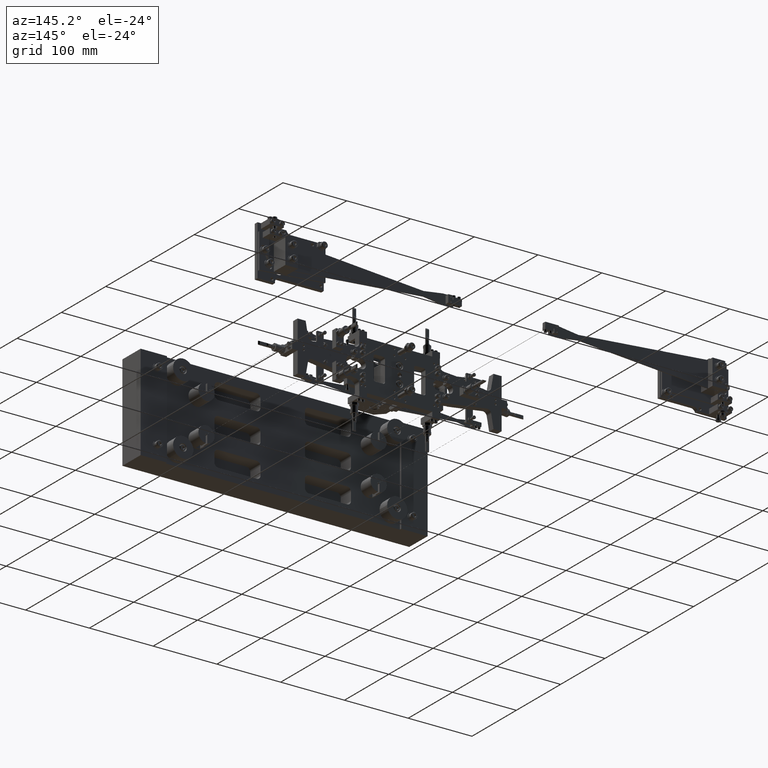
[diagram: clean part render]
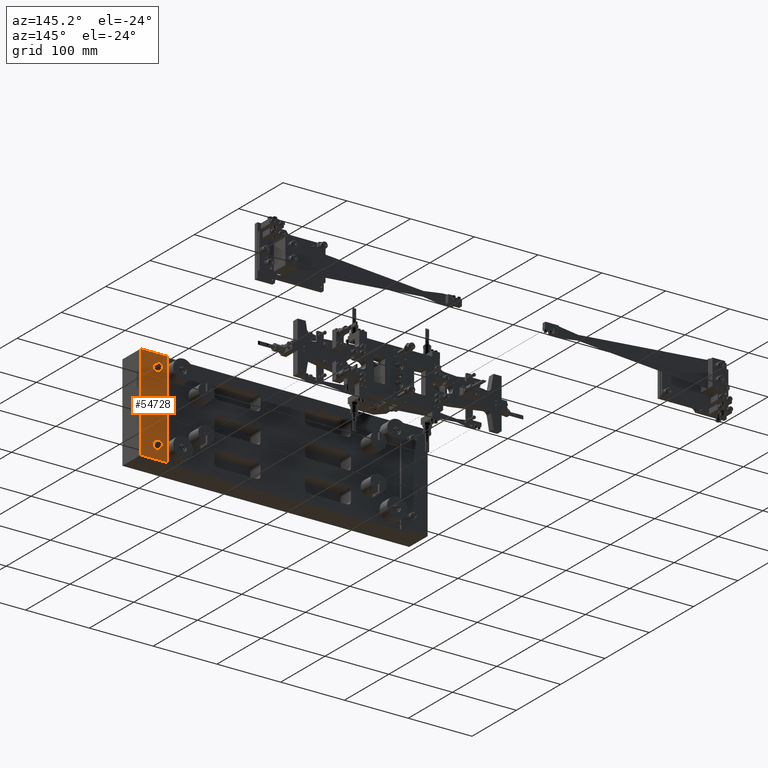
[diagram: same view with one face highlighted and labeled with its STEP entity id]
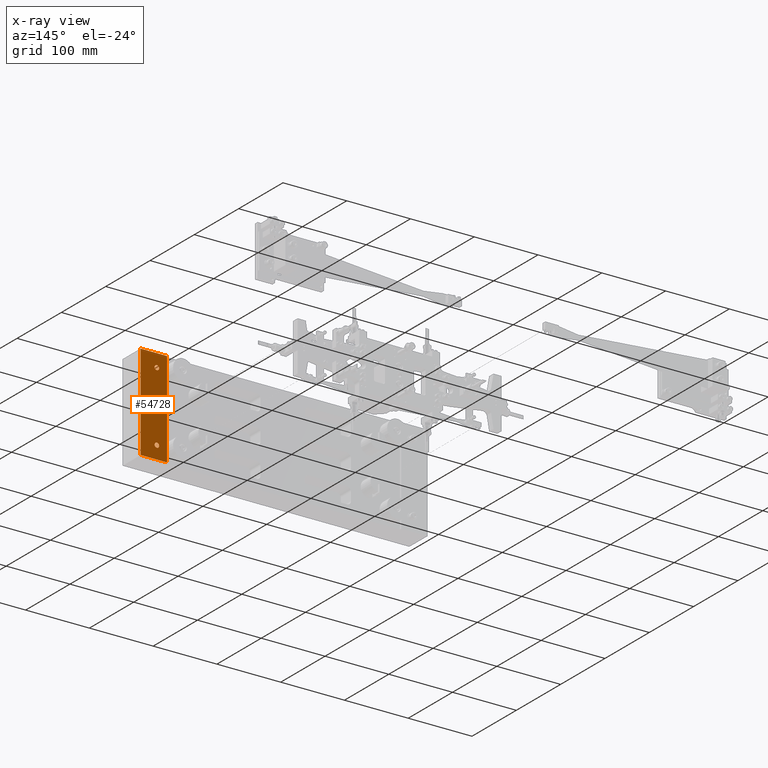
[diagram: x-ray of the same camera — body ghosted, the highlighted face saturated]
A machine part, auxiliary view. The second image highlights one B-rep face of the part: STEP entity #54728.
The next image is the same camera in x-ray: the body ghosted, the highlighted face saturated — about 0% of this face is hidden behind the body in this view.
In plain terms, the highlighted planar face has unit normal (-0, -1, 0).
Its self-contained STEP definition (entity closure, byte-faithful):
#204 = EDGE_LOOP ( 'NONE', ( #41944, #42886 ) ) ;
#3410 = CARTESIAN_POINT ( 'NONE',  ( 5.105000000000006600, 0.1300000000000021700, -1.140000000000000800 ) ) ;
#4037 = CARTESIAN_POINT ( 'NONE',  ( 5.905511811023629300, 0.1299999999999988900, 2.185478394931410600E-015 ) ) ;
#4884 = VERTEX_POINT ( 'NONE', #3410 ) ;
#6043 = EDGE_LOOP ( 'NONE', ( #24835, #17588 ) ) ;
#6798 = EDGE_CURVE ( 'NONE', #13612, #45603, #39007, .T. ) ;
#6997 = DIRECTION ( 'NONE',  ( 0.0000000000000000000, 1.000000000000000000, -5.551115123125782700E-017 ) ) ;
#7919 = CARTESIAN_POINT ( 'NONE',  ( 5.105000000000006600, 0.1300000000000021700, -1.000000000000000200 ) ) ;
#8697 = VERTEX_POINT ( 'NONE', #4037 ) ;
#8876 = CARTESIAN_POINT ( 'NONE',  ( 0.0000000000000000000, 0.1300000000000032500, -1.092739197465705300E-015 ) ) ;
#9729 = AXIS2_PLACEMENT_3D ( 'NONE', #16832, #52879, #21995 ) ;
#11081 = EDGE_CURVE ( 'NONE', #30431, #44125, #16044, .T. ) ;
#13144 = DIRECTION ( 'NONE',  ( 0.0000000000000000000, 0.0000000000000000000, 1.000000000000000000 ) ) ;
#13612 = VERTEX_POINT ( 'NONE', #61481 ) ;
#15513 = EDGE_LOOP ( 'NONE', ( #32011, #23717, #43969, #32496 ) ) ;
#15706 = CARTESIAN_POINT ( 'NONE',  ( 5.905511811023628400, 0.1300000000000010600, -1.625000000000002400 ) ) ;
#16044 = LINE ( 'NONE', #60767, #26479 ) ;
#16758 = CARTESIAN_POINT ( 'NONE',  ( 0.0000000000000000000, 0.1300000000000032500, -1.092739197465705300E-015 ) ) ;
#16832 = CARTESIAN_POINT ( 'NONE',  ( 0.8009999999999994900, 0.1300000000000032500, -1.000000000000001300 ) ) ;
#17588 = ORIENTED_EDGE ( 'NONE', *, *, #43611, .F. ) ;
#19180 = EDGE_CURVE ( 'NONE', #44125, #28712, #51097, .T. ) ;
#19592 = DIRECTION ( 'NONE',  ( -1.000000000000000000, -5.551115123125773500E-017, -5.551115123125773500E-017 ) ) ;
#20101 = AXIS2_PLACEMENT_3D ( 'NONE', #24758, #30002, #65946 ) ;
#20900 = CARTESIAN_POINT ( 'NONE',  ( 5.105000000000006600, 0.1300000000000021700, -1.000000000000000200 ) ) ;
#21929 = DIRECTION ( 'NONE',  ( -5.551115123125773500E-017, 0.0000000000000000000, 1.000000000000000000 ) ) ;
#21995 = DIRECTION ( 'NONE',  ( 0.0000000000000000000, 0.0000000000000000000, 1.000000000000000000 ) ) ;
#23057 = AXIS2_PLACEMENT_3D ( 'NONE', #20900, #56906, #26089 ) ;
#23717 = ORIENTED_EDGE ( 'NONE', *, *, #54660, .T. ) ;
#24323 = DIRECTION ( 'NONE',  ( 1.000000000000000000, 5.551115123125773500E-017, 5.551115123125773500E-017 ) ) ;
#24758 = CARTESIAN_POINT ( 'NONE',  ( 0.0000000000000000000, 0.1300000000000032500, -1.092739197465705300E-015 ) ) ;
#24835 = ORIENTED_EDGE ( 'NONE', *, *, #6798, .F. ) ;
#25804 = FACE_OUTER_BOUND ( 'NONE', #15513, .T. ) ;
#26089 = DIRECTION ( 'NONE',  ( 0.0000000000000000000, 0.0000000000000000000, 1.000000000000000000 ) ) ;
#26479 = VECTOR ( 'NONE', #19592, 39.37007874015748100 ) ;
#26702 = CIRCLE ( 'NONE', #47827, 0.1400000000000006800 ) ;
#28151 = AXIS2_PLACEMENT_3D ( 'NONE', #37850, #6997, #43039 ) ;
#28712 = VERTEX_POINT ( 'NONE', #8876 ) ;
#29166 = CARTESIAN_POINT ( 'NONE',  ( 5.105000000000006600, 0.1300000000000021700, -0.8599999999999996500 ) ) ;
#30002 = DIRECTION ( 'NONE',  ( 3.081487911019572200E-033, -1.000000000000000000, 1.710569414458999500E-049 ) ) ;
#30431 = VERTEX_POINT ( 'NONE', #15706 ) ;
#32011 = ORIENTED_EDGE ( 'NONE', *, *, #19180, .T. ) ;
#32367 = DIRECTION ( 'NONE',  ( 5.551115123125773500E-017, 0.0000000000000000000, -1.000000000000000000 ) ) ;
#32496 = ORIENTED_EDGE ( 'NONE', *, *, #11081, .T. ) ;
#37850 = CARTESIAN_POINT ( 'NONE',  ( 0.8009999999999994900, 0.1300000000000032500, -1.000000000000001300 ) ) ;
#39007 = CIRCLE ( 'NONE', #28151, 0.1400000000000005700 ) ;
#39009 = EDGE_CURVE ( 'NONE', #8697, #30431, #60012, .T. ) ;
#41121 = FACE_BOUND ( 'NONE', #204, .T. ) ;
#41944 = ORIENTED_EDGE ( 'NONE', *, *, #53228, .F. ) ;
#42028 = CARTESIAN_POINT ( 'NONE',  ( 0.8009999999999994900, 0.1300000000000032500, -0.8600000000000011000 ) ) ;
#42886 = ORIENTED_EDGE ( 'NONE', *, *, #46581, .F. ) ;
#43039 = DIRECTION ( 'NONE',  ( 0.0000000000000000000, 0.0000000000000000000, 1.000000000000000000 ) ) ;
#43091 = CIRCLE ( 'NONE', #9729, 0.1400000000000005700 ) ;
#43611 = EDGE_CURVE ( 'NONE', #45603, #13612, #43091, .T. ) ;
#43966 = DIRECTION ( 'NONE',  ( 0.0000000000000000000, 1.000000000000000000, -5.551115123125782700E-017 ) ) ;
#43969 = ORIENTED_EDGE ( 'NONE', *, *, #39009, .T. ) ;
#44125 = VERTEX_POINT ( 'NONE', #56381 ) ;
#45603 = VERTEX_POINT ( 'NONE', #42028 ) ;
#46581 = EDGE_CURVE ( 'NONE', #61160, #4884, #26702, .T. ) ;
#47827 = AXIS2_PLACEMENT_3D ( 'NONE', #7919, #43966, #13144 ) ;
#50978 = CIRCLE ( 'NONE', #23057, 0.1400000000000006800 ) ;
#51097 = LINE ( 'NONE', #16758, #52723 ) ;
#52723 = VECTOR ( 'NONE', #21929, 39.37007874015748100 ) ;
#52879 = DIRECTION ( 'NONE',  ( 0.0000000000000000000, 1.000000000000000000, -5.551115123125782700E-017 ) ) ;
#53228 = EDGE_CURVE ( 'NONE', #4884, #61160, #50978, .T. ) ;
#54660 = EDGE_CURVE ( 'NONE', #28712, #8697, #56436, .T. ) ;
#54728 = ADVANCED_FACE ( 'NONE', ( #65268, #25804, #41121 ), #60785, .F. ) ;
#54827 = VECTOR ( 'NONE', #24323, 39.37007874015748100 ) ;
#55193 = CARTESIAN_POINT ( 'NONE',  ( 0.0000000000000000000, 0.1300000000000032500, -1.092739197465705300E-015 ) ) ;
#56381 = CARTESIAN_POINT ( 'NONE',  ( 0.0000000000000000000, 0.1300000000000010600, -1.625000000000003600 ) ) ;
#56436 = LINE ( 'NONE', #55193, #54827 ) ;
#56758 = VECTOR ( 'NONE', #32367, 39.37007874015748100 ) ;
#56906 = DIRECTION ( 'NONE',  ( 0.0000000000000000000, 1.000000000000000000, -5.551115123125782700E-017 ) ) ;
#57996 = CARTESIAN_POINT ( 'NONE',  ( 5.905511811023629300, 0.1299999999999988900, 2.185478394931410600E-015 ) ) ;
#60012 = LINE ( 'NONE', #57996, #56758 ) ;
#60767 = CARTESIAN_POINT ( 'NONE',  ( 0.0000000000000000000, 0.1300000000000010600, -1.625000000000003600 ) ) ;
#60785 = PLANE ( 'NONE',  #20101 ) ;
#61160 = VERTEX_POINT ( 'NONE', #29166 ) ;
#61481 = CARTESIAN_POINT ( 'NONE',  ( 0.8009999999999994900, 0.1300000000000032500, -1.140000000000001700 ) ) ;
#65268 = FACE_BOUND ( 'NONE', #6043, .T. ) ;
#65946 = DIRECTION ( 'NONE',  ( 5.551115123125773500E-017, 0.0000000000000000000, -1.000000000000000000 ) ) ;